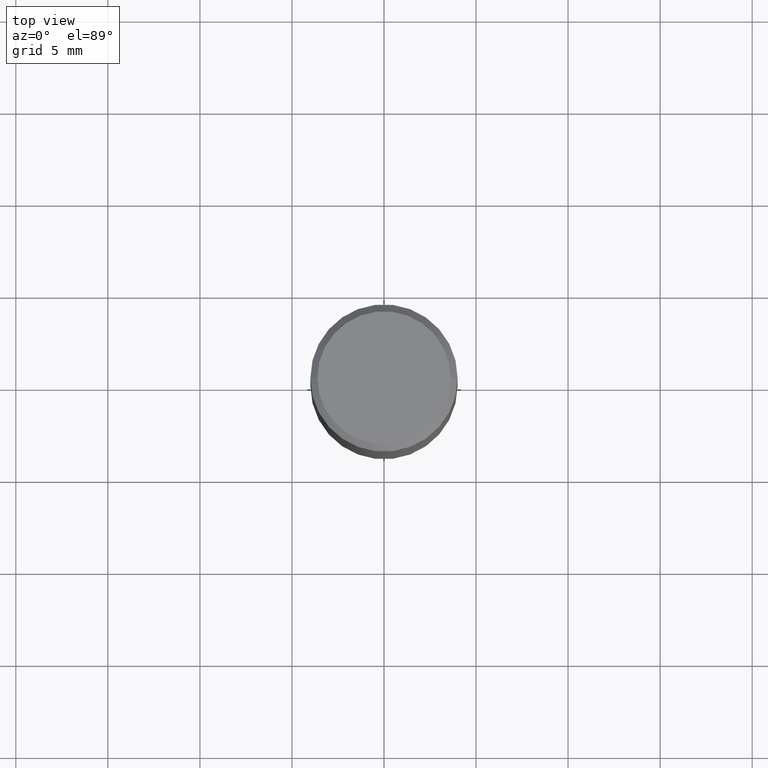
[diagram: clean part render]
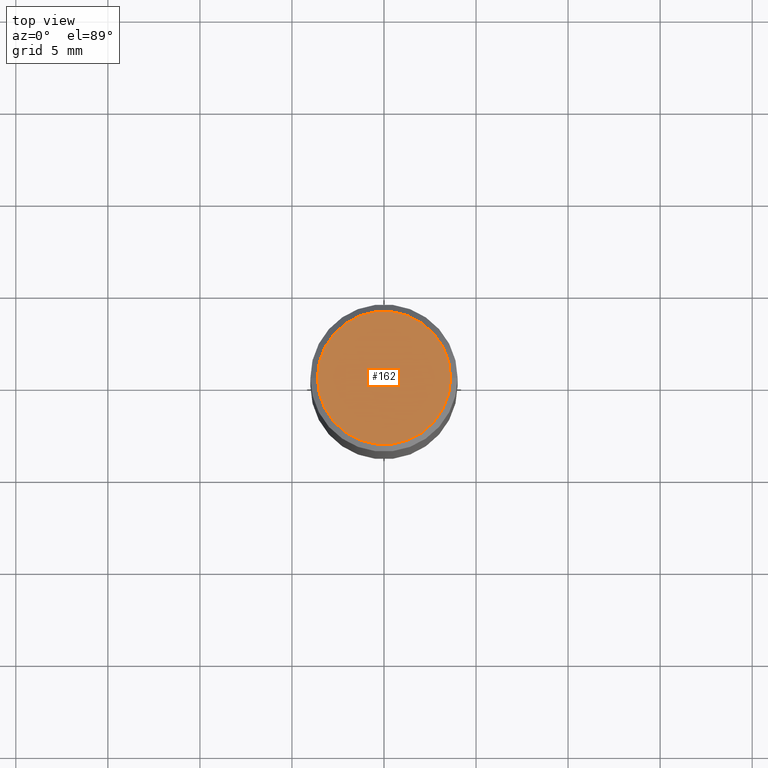
[diagram: same view with one face highlighted and labeled with its STEP entity id]
A machine part, top view. The second image highlights one B-rep face of the part: STEP entity #162.
In plain terms, the highlighted planar face has unit normal (0, -0, -1).
Its self-contained STEP definition (entity closure, byte-faithful):
#16 = EDGE_CURVE ( 'NONE', #91, #58, #384, .T. ) ;
#21 = AXIS2_PLACEMENT_3D ( 'NONE', #246, #290, #183 ) ;
#24 = ORIENTED_EDGE ( 'NONE', *, *, #16, .T. ) ;
#34 = EDGE_LOOP ( 'NONE', ( #24, #228 ) ) ;
#57 = CARTESIAN_POINT ( 'NONE',  ( 5.413510571379636467E-45, -7.729058366967026333E-31, -2.213690298435890852E-16 ) ) ;
#58 = VERTEX_POINT ( 'NONE', #93 ) ;
#72 = FACE_OUTER_BOUND ( 'NONE', #34, .T. ) ;
#90 = EDGE_CURVE ( 'NONE', #58, #91, #267, .T. ) ;
#91 = VERTEX_POINT ( 'NONE', #184 ) ;
#93 = CARTESIAN_POINT ( 'NONE',  ( 0.1424999999999999878, -1.055260809707053708E-15, -2.213690298435819362E-16 ) ) ;
#98 = DIRECTION ( 'NONE',  ( 1.000000000000000000, -6.982962677686266711E-15, 4.874020801377837404E-29 ) ) ;
#152 = AXIS2_PLACEMENT_3D ( 'NONE', #325, #289, #153 ) ;
#153 = DIRECTION ( 'NONE',  ( 1.000000000000000000, -6.982962677686266711E-15, 4.874020801377837404E-29 ) ) ;
#162 = ADVANCED_FACE ( 'NONE', ( #72 ), #288, .F. ) ;
#183 = DIRECTION ( 'NONE',  ( -1.000000000000000000, 6.982962677686265922E-15, -4.876176775795935793E-29 ) ) ;
#184 = CARTESIAN_POINT ( 'NONE',  ( -0.1424999999999999878, 1.021258291611616073E-15, -2.213690298435961110E-16 ) ) ;
#228 = ORIENTED_EDGE ( 'NONE', *, *, #90, .T. ) ;
#246 = CARTESIAN_POINT ( 'NONE',  ( 9.950721815702929274E-16, 0.1424999999999999878, -6.082206057069427689E-16 ) ) ;
#267 = CIRCLE ( 'NONE', #152, 0.1424999999999999878 ) ;
#278 = DIRECTION ( 'NONE',  ( -2.445468806185136597E-29, 3.491481338843145583E-15, 1.000000000000000000 ) ) ;
#288 = PLANE ( 'NONE',  #21 ) ;
#289 = DIRECTION ( 'NONE',  ( -2.445468806185136597E-29, 3.491481338843145583E-15, 1.000000000000000000 ) ) ;
#290 = DIRECTION ( 'NONE',  ( 2.438088387897960049E-29, -3.491481338843145188E-15, -1.000000000000000000 ) ) ;
#325 = CARTESIAN_POINT ( 'NONE',  ( 5.413510571379636467E-45, -7.729058366967026333E-31, -2.213690298435890852E-16 ) ) ;
#384 = CIRCLE ( 'NONE', #424, 0.1424999999999999878 ) ;
#424 = AXIS2_PLACEMENT_3D ( 'NONE', #57, #278, #98 ) ;